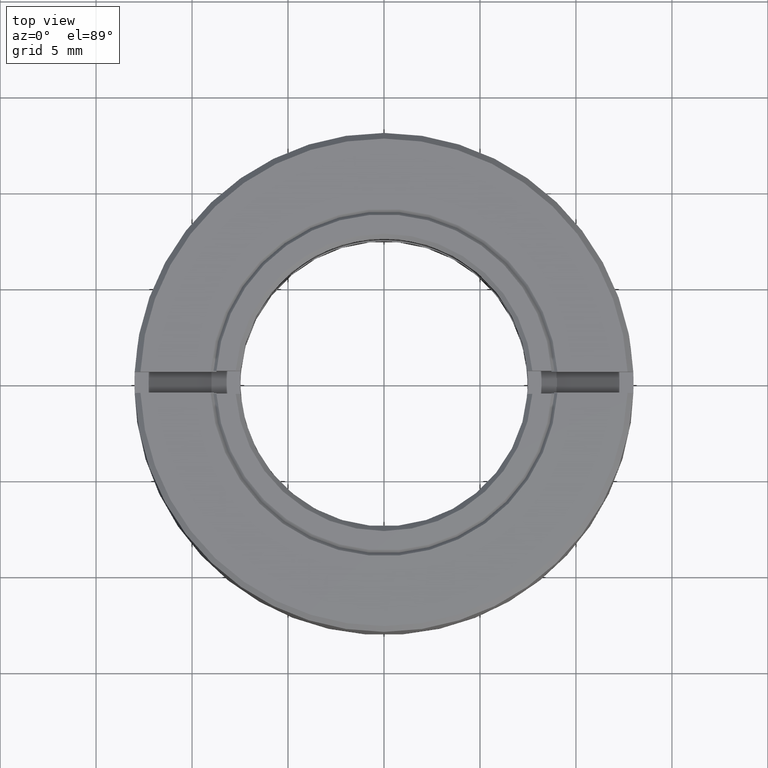
[diagram: clean part render]
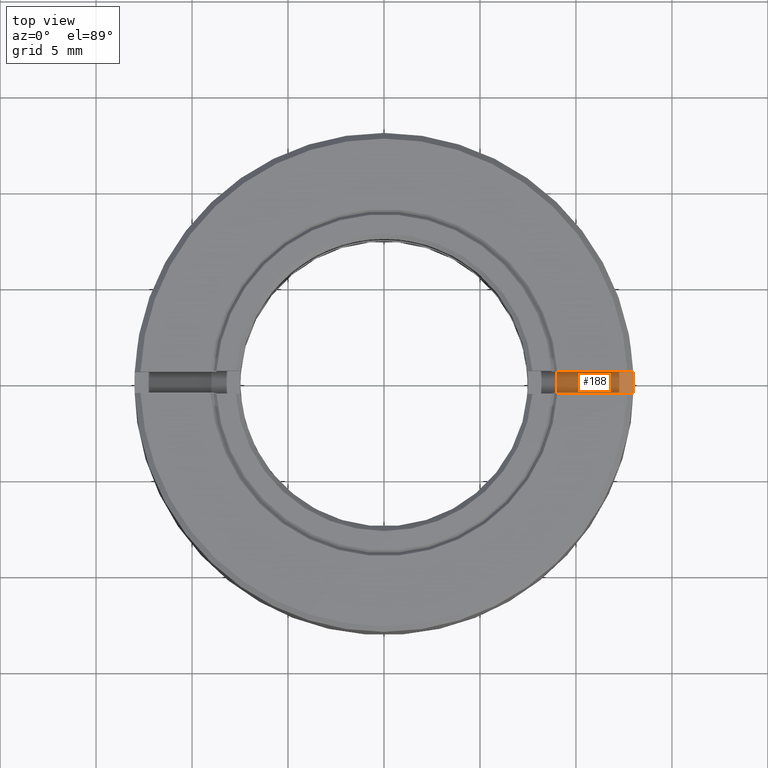
[diagram: same view with one face highlighted and labeled with its STEP entity id]
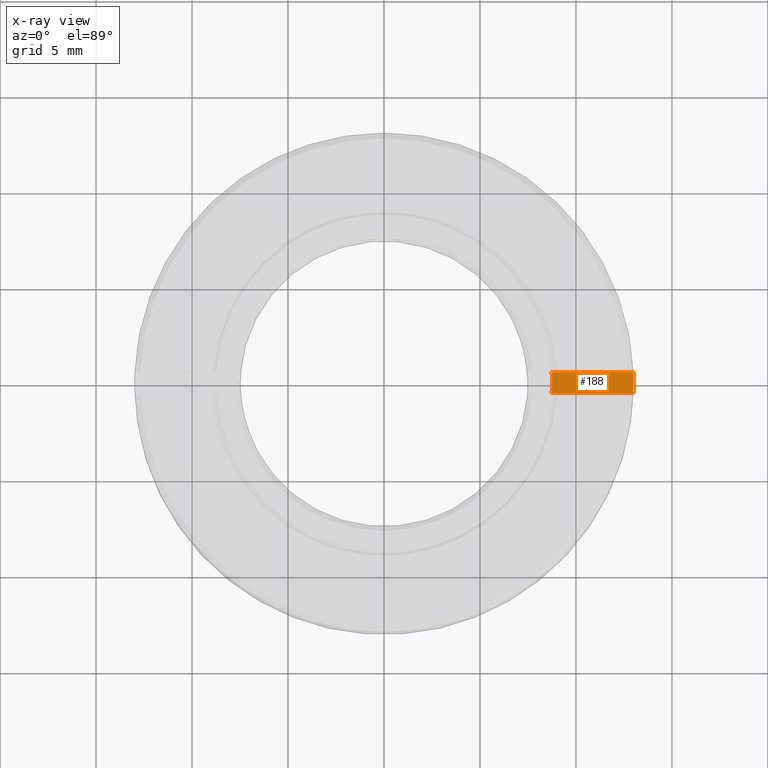
[diagram: x-ray of the same camera — body ghosted, the highlighted face saturated]
A machine part, top view. The second image highlights one B-rep face of the part: STEP entity #188.
The next image is the same camera in x-ray: the body ghosted, the highlighted face saturated — about 0% of this face is hidden behind the body in this view.
In plain terms, the highlighted planar face has unit normal (0, 0, 1).
Its self-contained STEP definition (entity closure, byte-faithful):
#34 = CARTESIAN_POINT ( 'NONE',  ( 12.98836017363239037, -0.5500000000000000444, 4.000000000000000000 ) ) ;
#37 = CIRCLE ( 'NONE', #584, 13.00000000000000355 ) ;
#177 = EDGE_CURVE ( 'NONE', #423, #1078, #37, .T. ) ;
#188 = ADVANCED_FACE ( 'NONE', ( #686 ), #1217, .T. ) ;
#217 = ORIENTED_EDGE ( 'NONE', *, *, #465, .T. ) ;
#272 = VECTOR ( 'NONE', #762, 1000.000000000000000 ) ;
#275 = ORIENTED_EDGE ( 'NONE', *, *, #518, .T. ) ;
#342 = CARTESIAN_POINT ( 'NONE',  ( 0.000000000000000000, 0.000000000000000000, 4.000000000000000000 ) ) ;
#418 = LINE ( 'NONE', #1016, #272 ) ;
#423 = VERTEX_POINT ( 'NONE', #34 ) ;
#439 = EDGE_LOOP ( 'NONE', ( #1172, #217, #275, #1339 ) ) ;
#465 = EDGE_CURVE ( 'NONE', #1078, #706, #1146, .T. ) ;
#518 = EDGE_CURVE ( 'NONE', #706, #562, #587, .T. ) ;
#562 = VERTEX_POINT ( 'NONE', #1555 ) ;
#574 = DIRECTION ( 'NONE',  ( 0.000000000000000000, 0.000000000000000000, -1.000000000000000000 ) ) ;
#584 = AXIS2_PLACEMENT_3D ( 'NONE', #1096, #804, #695 ) ;
#587 = CIRCLE ( 'NONE', #1547, 8.750000000000001776 ) ;
#597 = CARTESIAN_POINT ( 'NONE',  ( 8.732697177848320891, 0.5500000000000000444, 4.000000000000000000 ) ) ;
#686 = FACE_OUTER_BOUND ( 'NONE', #439, .T. ) ;
#694 = DIRECTION ( 'NONE',  ( 1.000000000000000000, 0.000000000000000000, 0.000000000000000000 ) ) ;
#695 = DIRECTION ( 'NONE',  ( -1.000000000000000000, 1.687538997430237941E-14, 0.000000000000000000 ) ) ;
#706 = VERTEX_POINT ( 'NONE', #597 ) ;
#762 = DIRECTION ( 'NONE',  ( 1.000000000000000000, 0.000000000000000000, -0.000000000000000000 ) ) ;
#787 = DIRECTION ( 'NONE',  ( -1.000000000000000000, -0.000000000000000000, -0.000000000000000000 ) ) ;
#804 = DIRECTION ( 'NONE',  ( 0.000000000000000000, 0.000000000000000000, 1.000000000000000000 ) ) ;
#820 = CARTESIAN_POINT ( 'NONE',  ( 0.000000000000000000, 0.000000000000000000, 4.000000000000000888 ) ) ;
#883 = EDGE_CURVE ( 'NONE', #562, #423, #418, .T. ) ;
#1011 = CARTESIAN_POINT ( 'NONE',  ( -12.98836017363239037, 0.5500000000000000444, 4.000000000000000000 ) ) ;
#1016 = CARTESIAN_POINT ( 'NONE',  ( 0.000000000000000000, -0.5500000000000000444, 4.000000000000000000 ) ) ;
#1064 = CARTESIAN_POINT ( 'NONE',  ( 12.98836017363239037, 0.5500000000000000444, 4.000000000000000000 ) ) ;
#1068 = DIRECTION ( 'NONE',  ( 1.000000000000000000, 0.000000000000000000, -0.000000000000000000 ) ) ;
#1078 = VERTEX_POINT ( 'NONE', #1064 ) ;
#1096 = CARTESIAN_POINT ( 'NONE',  ( 0.000000000000000000, 0.000000000000000000, 4.000000000000000000 ) ) ;
#1146 = LINE ( 'NONE', #1011, #1496 ) ;
#1172 = ORIENTED_EDGE ( 'NONE', *, *, #177, .T. ) ;
#1217 = PLANE ( 'NONE',  #1312 ) ;
#1312 = AXIS2_PLACEMENT_3D ( 'NONE', #342, #1431, #1068 ) ;
#1339 = ORIENTED_EDGE ( 'NONE', *, *, #883, .T. ) ;
#1431 = DIRECTION ( 'NONE',  ( 0.000000000000000000, 0.000000000000000000, 1.000000000000000000 ) ) ;
#1496 = VECTOR ( 'NONE', #787, 1000.000000000000000 ) ;
#1547 = AXIS2_PLACEMENT_3D ( 'NONE', #820, #574, #694 ) ;
#1555 = CARTESIAN_POINT ( 'NONE',  ( 8.732697177848320891, -0.5500000000000000444, 4.000000000000000000 ) ) ;